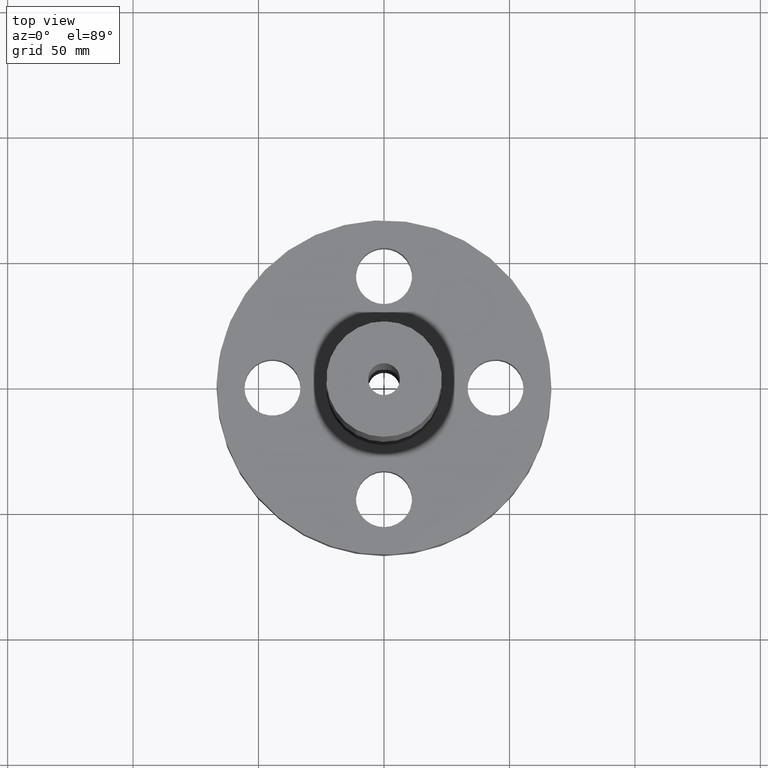
[diagram: clean part render]
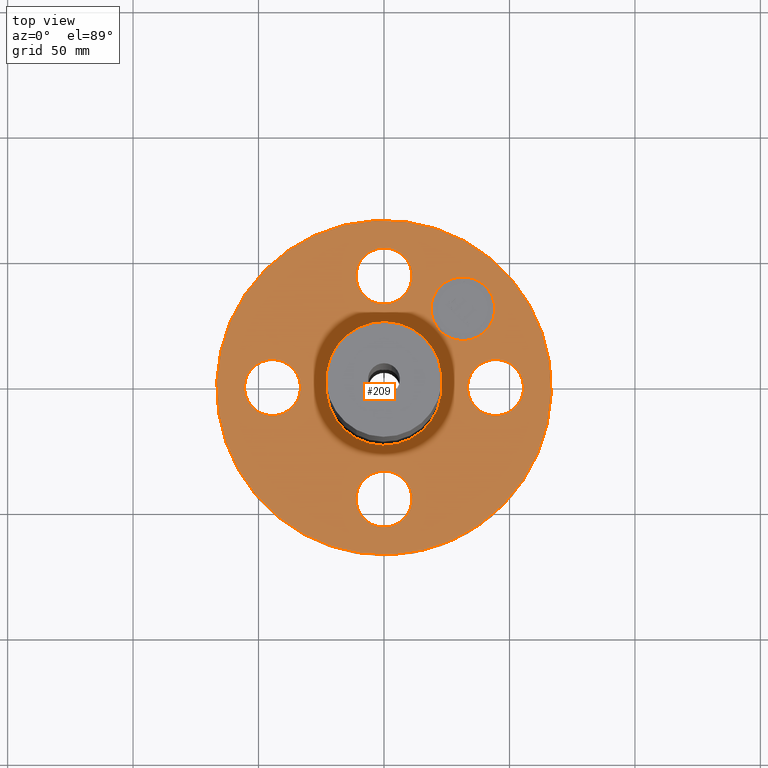
[diagram: same view with one face highlighted and labeled with its STEP entity id]
A machine part, top view. The second image highlights one B-rep face of the part: STEP entity #209.
In plain terms, the highlighted planar face has unit normal (0, 0, -1).
Its self-contained STEP definition (entity closure, byte-faithful):
#51=AXIS2_PLACEMENT_3D('Circle Axis2P3D',#49,#50,$) ;
#77=AXIS2_PLACEMENT_3D('Circle Axis2P3D',#75,#76,$) ;
#95=AXIS2_PLACEMENT_3D('Plane Axis2P3D',#92,#93,#94) ;
#99=AXIS2_PLACEMENT_3D('Circle Axis2P3D',#97,#98,$) ;
#108=AXIS2_PLACEMENT_3D('Circle Axis2P3D',#106,#107,$) ;
#121=AXIS2_PLACEMENT_3D('Circle Axis2P3D',#119,#120,$) ;
#130=AXIS2_PLACEMENT_3D('Circle Axis2P3D',#128,#129,$) ;
#139=AXIS2_PLACEMENT_3D('Circle Axis2P3D',#137,#138,$) ;
#148=AXIS2_PLACEMENT_3D('Circle Axis2P3D',#146,#147,$) ;
#157=AXIS2_PLACEMENT_3D('Circle Axis2P3D',#155,#156,$) ;
#166=AXIS2_PLACEMENT_3D('Circle Axis2P3D',#164,#165,$) ;
#175=AXIS2_PLACEMENT_3D('Circle Axis2P3D',#173,#174,$) ;
#184=AXIS2_PLACEMENT_3D('Circle Axis2P3D',#182,#183,$) ;
#193=AXIS2_PLACEMENT_3D('Circle Axis2P3D',#191,#192,$) ;
#202=AXIS2_PLACEMENT_3D('Circle Axis2P3D',#200,#201,$) ;
#44=CARTESIAN_POINT('Vertex',(1.36386367277,-0.210947236987,1.19)) ;
#49=CARTESIAN_POINT('Axis2P3D Location',(1.75000000001,0.,1.19)) ;
#53=CARTESIAN_POINT('Vertex',(2.13613632724,0.210947236987,1.19)) ;
#75=CARTESIAN_POINT('Axis2P3D Location',(1.75000000001,0.,1.19)) ;
#92=CARTESIAN_POINT('Axis2P3D Location',(0.,2.62500000001,1.19)) ;
#97=CARTESIAN_POINT('Axis2P3D Location',(0.,0.,1.19)) ;
#101=CARTESIAN_POINT('Vertex',(1.25849203884,2.30365422497,1.19)) ;
#103=CARTESIAN_POINT('Vertex',(-1.25849203884,-2.30365422497,1.19)) ;
#106=CARTESIAN_POINT('Axis2P3D Location',(0.,0.,1.19)) ;
#119=CARTESIAN_POINT('Axis2P3D Location',(0.,0.,1.19)) ;
#123=CARTESIAN_POINT('Vertex',(-0.433880112439,-0.794212218514,1.19)) ;
#125=CARTESIAN_POINT('Vertex',(0.433880112439,0.794212218514,1.19)) ;
#128=CARTESIAN_POINT('Axis2P3D Location',(0.,0.,1.19)) ;
#137=CARTESIAN_POINT('Axis2P3D Location',(-3.84644197508E-016,-1.75000000001,1.19)) ;
#141=CARTESIAN_POINT('Vertex',(-0.210947236987,-1.36386367277,1.19)) ;
#143=CARTESIAN_POINT('Vertex',(0.210947236987,-2.13613632724,1.19)) ;
#146=CARTESIAN_POINT('Axis2P3D Location',(2.09805925913E-016,-1.75000000001,1.19)) ;
#155=CARTESIAN_POINT('Axis2P3D Location',(-1.75000000001,-5.59482469102E-016,1.19)) ;
#159=CARTESIAN_POINT('Vertex',(-1.36386367277,0.210947236987,1.19)) ;
#161=CARTESIAN_POINT('Vertex',(-2.13613632724,-0.210947236987,1.19)) ;
#164=CARTESIAN_POINT('Axis2P3D Location',(-1.75000000001,0.,1.19)) ;
#173=CARTESIAN_POINT('Axis2P3D Location',(-3.1470888887E-016,1.75000000001,1.19)) ;
#177=CARTESIAN_POINT('Vertex',(0.210947236987,1.36386367277,1.19)) ;
#179=CARTESIAN_POINT('Vertex',(-0.210947236987,2.13613632724,1.19)) ;
#182=CARTESIAN_POINT('Axis2P3D Location',(-4.89547160465E-016,1.75000000001,1.19)) ;
#191=CARTESIAN_POINT('Axis2P3D Location',(1.23743686708,1.23743686708,1.19)) ;
#195=CARTESIAN_POINT('Vertex',(1.59099025414,0.883883480022,1.19)) ;
#197=CARTESIAN_POINT('Vertex',(0.883883480022,1.59099025414,1.19)) ;
#200=CARTESIAN_POINT('Axis2P3D Location',(1.23743686708,1.23743686708,1.19)) ;
#50=DIRECTION('Axis2P3D Direction',(0.,-0.,0.0393700787402)) ;
#76=DIRECTION('Axis2P3D Direction',(0.,-0.,0.0393700787402)) ;
#93=DIRECTION('Axis2P3D Direction',(0.,0.,-0.0393700787402)) ;
#94=DIRECTION('Axis2P3D XDirection',(0.0393700787402,0.,0.)) ;
#98=DIRECTION('Axis2P3D Direction',(0.,0.,-0.0393700787402)) ;
#107=DIRECTION('Axis2P3D Direction',(0.,0.,-0.0393700787402)) ;
#120=DIRECTION('Axis2P3D Direction',(0.,0.,-0.0393700787402)) ;
#129=DIRECTION('Axis2P3D Direction',(0.,0.,-0.0393700787402)) ;
#138=DIRECTION('Axis2P3D Direction',(0.,0.,-0.0393700787402)) ;
#147=DIRECTION('Axis2P3D Direction',(0.,0.,-0.0393700787402)) ;
#156=DIRECTION('Axis2P3D Direction',(0.,0.,-0.0393700787402)) ;
#165=DIRECTION('Axis2P3D Direction',(0.,0.,-0.0393700787402)) ;
#174=DIRECTION('Axis2P3D Direction',(0.,0.,-0.0393700787402)) ;
#183=DIRECTION('Axis2P3D Direction',(0.,0.,-0.0393700787402)) ;
#192=DIRECTION('Axis2P3D Direction',(0.,0.,-0.0393700787402)) ;
#201=DIRECTION('Axis2P3D Direction',(0.,0.,-0.0393700787402)) ;
#112=ORIENTED_EDGE('',*,*,#105,.F.) ;
#113=ORIENTED_EDGE('',*,*,#110,.F.) ;
#116=ORIENTED_EDGE('',*,*,#55,.T.) ;
#117=ORIENTED_EDGE('',*,*,#79,.T.) ;
#134=ORIENTED_EDGE('',*,*,#127,.T.) ;
#135=ORIENTED_EDGE('',*,*,#132,.T.) ;
#152=ORIENTED_EDGE('',*,*,#145,.T.) ;
#153=ORIENTED_EDGE('',*,*,#150,.T.) ;
#170=ORIENTED_EDGE('',*,*,#163,.T.) ;
#171=ORIENTED_EDGE('',*,*,#168,.T.) ;
#188=ORIENTED_EDGE('',*,*,#181,.T.) ;
#189=ORIENTED_EDGE('',*,*,#186,.T.) ;
#206=ORIENTED_EDGE('',*,*,#199,.F.) ;
#207=ORIENTED_EDGE('',*,*,#204,.F.) ;
#118=FACE_BOUND('',#115,.T.) ;
#136=FACE_BOUND('',#133,.T.) ;
#154=FACE_BOUND('',#151,.T.) ;
#172=FACE_BOUND('',#169,.T.) ;
#190=FACE_BOUND('',#187,.T.) ;
#208=FACE_BOUND('',#205,.T.) ;
#209=ADVANCED_FACE('PartBody',(#114,#118,#136,#154,#172,#190,#208),#96,.F.) ;
#52=CIRCLE('generated circle',#51,0.440000000002) ;
#78=CIRCLE('generated circle',#77,0.440000000002) ;
#100=CIRCLE('generated circle',#99,2.62500000001) ;
#109=CIRCLE('generated circle',#108,2.62500000001) ;
#122=CIRCLE('generated circle',#121,0.905000000004) ;
#131=CIRCLE('generated circle',#130,0.905000000004) ;
#140=CIRCLE('generated circle',#139,0.440000000002) ;
#149=CIRCLE('generated circle',#148,0.440000000002) ;
#158=CIRCLE('generated circle',#157,0.440000000002) ;
#167=CIRCLE('generated circle',#166,0.440000000002) ;
#176=CIRCLE('generated circle',#175,0.440000000002) ;
#185=CIRCLE('generated circle',#184,0.440000000002) ;
#194=CIRCLE('generated circle',#193,0.499999995002) ;
#203=CIRCLE('generated circle',#202,0.499999995002) ;
#55=EDGE_CURVE('',#54,#45,#52,.F.) ;
#79=EDGE_CURVE('',#45,#54,#78,.F.) ;
#105=EDGE_CURVE('',#102,#104,#100,.T.) ;
#110=EDGE_CURVE('',#104,#102,#109,.T.) ;
#127=EDGE_CURVE('',#124,#126,#122,.T.) ;
#132=EDGE_CURVE('',#126,#124,#131,.T.) ;
#145=EDGE_CURVE('',#142,#144,#140,.T.) ;
#150=EDGE_CURVE('',#144,#142,#149,.T.) ;
#163=EDGE_CURVE('',#160,#162,#158,.T.) ;
#168=EDGE_CURVE('',#162,#160,#167,.T.) ;
#181=EDGE_CURVE('',#178,#180,#176,.T.) ;
#186=EDGE_CURVE('',#180,#178,#185,.T.) ;
#199=EDGE_CURVE('',#196,#198,#194,.F.) ;
#204=EDGE_CURVE('',#198,#196,#203,.F.) ;
#111=EDGE_LOOP('',(#112,#113)) ;
#115=EDGE_LOOP('',(#116,#117)) ;
#133=EDGE_LOOP('',(#134,#135)) ;
#151=EDGE_LOOP('',(#152,#153)) ;
#169=EDGE_LOOP('',(#170,#171)) ;
#187=EDGE_LOOP('',(#188,#189)) ;
#205=EDGE_LOOP('',(#206,#207)) ;
#114=FACE_OUTER_BOUND('',#111,.T.) ;
#96=PLANE('',#95) ;
#45=VERTEX_POINT('',#44) ;
#54=VERTEX_POINT('',#53) ;
#102=VERTEX_POINT('',#101) ;
#104=VERTEX_POINT('',#103) ;
#124=VERTEX_POINT('',#123) ;
#126=VERTEX_POINT('',#125) ;
#142=VERTEX_POINT('',#141) ;
#144=VERTEX_POINT('',#143) ;
#160=VERTEX_POINT('',#159) ;
#162=VERTEX_POINT('',#161) ;
#178=VERTEX_POINT('',#177) ;
#180=VERTEX_POINT('',#179) ;
#196=VERTEX_POINT('',#195) ;
#198=VERTEX_POINT('',#197) ;